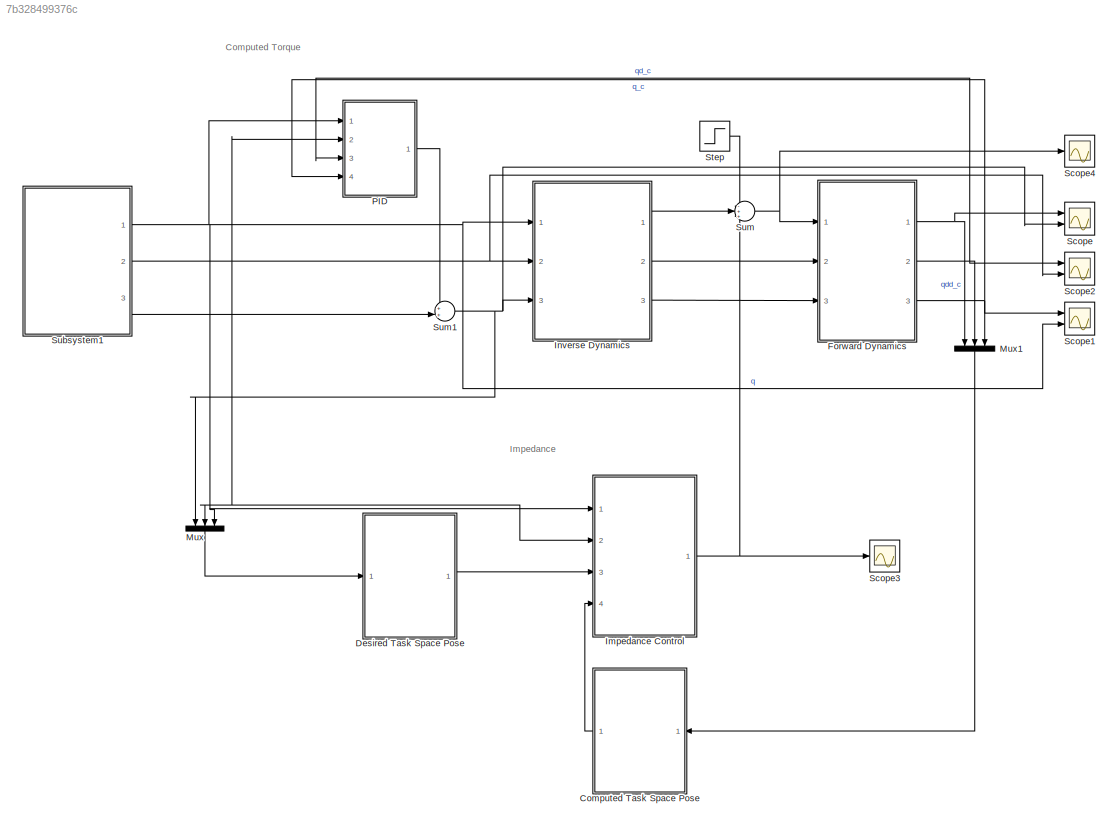
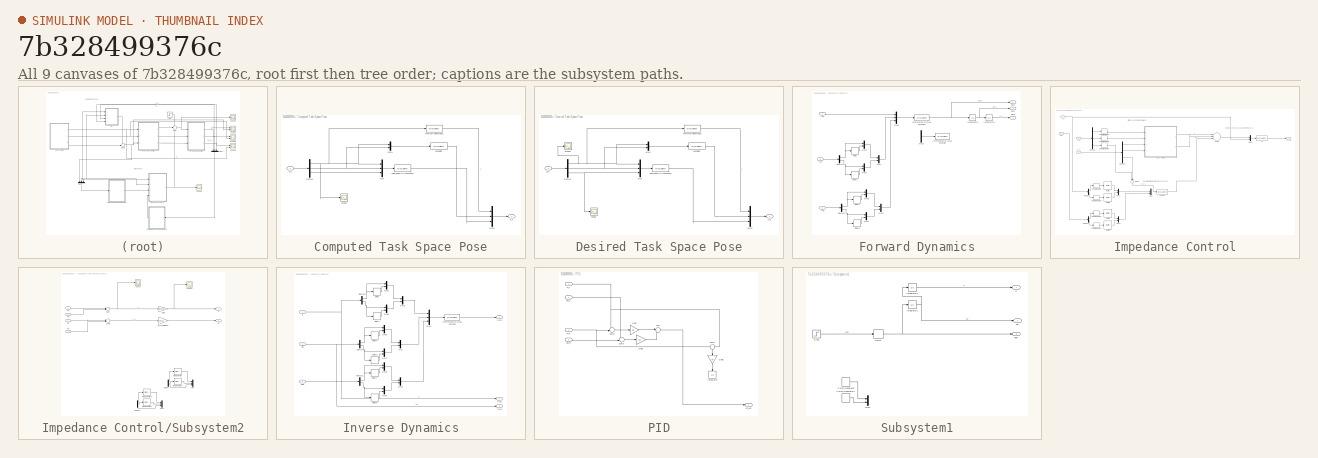
[diagram: thumbnail index - all 9 canvases of the model, root first then tree order]
MODEL slx_7b328499376c
KIND model
CONFIG AbsTol = auto
CONFIG EnableMultiTasking = off
CONFIG FixedStep = 0.01
CONFIG MaxStep = auto
CONFIG MinStep = auto
CONFIG RelTol = 1e-3
CONFIG SampleTimeConstraint = Unconstrained
CONFIG Solver = ode4
CONFIG SolverName = ode4
CONFIG StartTime = 0.0
CONFIG StopTime = 2
BLOCK [SubSystem] Computed Task Space Pose
  Ports = [1, 1]
  RequestExecContextInheritance = off
BLOCK [Demux] Computed Task Space Pose/Demux
  DisplayOption = bar
  Outputs = 3
  Ports = [1, 3]
BLOCK [MATLABFcn] Computed Task Space Pose/Forward Kinematics
  MATLABFcn = calcForward
  Output1D = off
  Ports = [1, 1]
BLOCK [MATLABFcn] Computed Task Space Pose/Jacobian
  MATLABFcn = calcXd
  Output1D = off
  Ports = [1, 1]
BLOCK [MATLABFcn] Computed Task Space Pose/Jointspace to taskspace
  MATLABFcn = computeJoint2Task
  Output1D = off
  Ports = [1, 1]
BLOCK [Mux] Computed Task Space Pose/Mux
  DisplayOption = bar
  Inputs = 3
  Ports = [3, 1]
BLOCK [Mux] Computed Task Space Pose/Mux1
  DisplayOption = bar
  Inputs = 2
  Ports = [2, 1]
BLOCK [Mux] Computed Task Space Pose/Mux2
  DisplayOption = bar
  Inputs = 3
  Ports = [3, 1]
BLOCK [Scope] Computed Task Space Pose/Scope
  Floating = off
  NumInputPorts = 1
  Ports = [1]
  ScopeSpecificationString = Simulink.scopes.TimeScopeBlockCfg('CurrentConfiguration', extmgr.ConfigurationSet(extmgr.Configuration('Core','General UI',true),extmgr.Configuration('Core','Source UI',true),extmgr.Configuration('Sources','WiredSimulink',true,'DataLoggingVariableName','ScopeData2'),extmgr.Configuration('Visuals','Time Domain',true,'SerializedDisplays',{struct('MinYLimReal','-1.00000','MaxYLimReal','1.00000','YLab...<+1407ch>
BLOCK [Inport] Computed Task Space Pose/q_c
  IconDisplay = Port number
BLOCK [Outport] Computed Task Space Pose/x_d
  IconDisplay = Port number
BLOCK [SubSystem] Desired Task Space Pose
  Ports = [1, 1]
  RequestExecContextInheritance = off
BLOCK [Demux] Desired Task Space Pose/Demux
  DisplayOption = bar
  Outputs = 3
  Ports = [1, 3]
BLOCK [MATLABFcn] Desired Task Space Pose/Forward Kinematics
  MATLABFcn = calcForward
  Output1D = off
  Ports = [1, 1]
BLOCK [MATLABFcn] Desired Task Space Pose/Jacobian
  MATLABFcn = calcXd
  Output1D = off
  Ports = [1, 1]
BLOCK [MATLABFcn] Desired Task Space Pose/Jointspace to taskspace
  MATLABFcn = computeJoint2Task
  Output1D = off
  Ports = [1, 1]
BLOCK [Mux] Desired Task Space Pose/Mux
  DisplayOption = bar
  Inputs = 3
  Ports = [3, 1]
BLOCK [Mux] Desired Task Space Pose/Mux1
  DisplayOption = bar
  Inputs = 2
  Ports = [2, 1]
BLOCK [Mux] Desired Task Space Pose/Mux2
  DisplayOption = bar
  Inputs = 3
  Ports = [3, 1]
BLOCK [Scope] Desired Task Space Pose/Scope
  Floating = off
  NumInputPorts = 1
  Ports = [1]
  ScopeSpecificationString = Simulink.scopes.TimeScopeBlockCfg('CurrentConfiguration', extmgr.ConfigurationSet(extmgr.Configuration('Core','General UI',true),extmgr.Configuration('Core','Source UI',true),extmgr.Configuration('Sources','WiredSimulink',true,'DataLoggingVariableName','ScopeData4'),extmgr.Configuration('Visuals','Time Domain',true,'SerializedDisplays',{struct('MinYLimReal','-0.000002','MaxYLimReal','0.000017','YL...<+1388ch>
BLOCK [Scope] Desired Task Space Pose/Scope1
  Floating = off
  NumInputPorts = 1
  Ports = [1]
  ScopeSpecificationString = Simulink.scopes.TimeScopeBlockCfg('CurrentConfiguration', extmgr.ConfigurationSet(extmgr.Configuration('Core','General UI',true),extmgr.Configuration('Core','Source UI',true),extmgr.Configuration('Sources','WiredSimulink',true,'DataLoggingVariableName','ScopeData5'),extmgr.Configuration('Visuals','Time Domain',true,'SerializedDisplays',{struct('MinYLimReal','-0.04375','MaxYLimReal','0.39375','YLab...<+1409ch>
BLOCK [Inport] Desired Task Space Pose/q_d
  IconDisplay = Port number
BLOCK [Outport] Desired Task Space Pose/x_d
  IconDisplay = Port number
BLOCK [SubSystem] Forward Dynamics
  Ports = [3, 3]
  RequestExecContextInheritance = off
  ShowPortLabels = SignalName
BLOCK [Delay] Forward Dynamics/Delay
  DelayLength = 1
  InputPortMap = u0
  Ports = [1, 1]
BLOCK [Delay] Forward Dynamics/Delay1
  DelayLength = 1
  InputPortMap = u0
  Ports = [1, 1]
BLOCK [Delay] Forward Dynamics/Delay2
  DelayLength = 1
  InputPortMap = u0
  Ports = [1, 1]
BLOCK [Delay] Forward Dynamics/Delay3
  DelayLength = 1
  InputPortMap = u0
  Ports = [1, 1]
BLOCK [Demux] Forward Dynamics/Demux
  DisplayOption = bar
  Outputs = 2
  Ports = [1, 2]
BLOCK [Demux] Forward Dynamics/Demux1
  DisplayOption = bar
  Outputs = 2
  Ports = [1, 2]
BLOCK [Inport] Forward Dynamics/In1
  IconDisplay = Port number
BLOCK [Inport] Forward Dynamics/In2
  IconDisplay = Port number
  Port = 2
BLOCK [Inport] Forward Dynamics/In3
  IconDisplay = Port number
  Port = 3
BLOCK [Integrator] Forward Dynamics/Integrator2
  Ports = [1, 1]
BLOCK [Integrator] Forward Dynamics/Integrator3
  Ports = [1, 1]
BLOCK [MATLABFcn] Forward Dynamics/Interpreted MATLAB Function
  Commented = on
  MATLABFcn = fdynLagrange
  Output1D = off
  Ports = [1, 1]
BLOCK [MATLABFcn] Forward Dynamics/Interpreted MATLAB Function1
  MATLABFcn = forwardDyn
  Output1D = off
  Ports = [1, 1]
BLOCK [Mux] Forward Dynamics/Mux
  DisplayOption = bar
  Inputs = 2
  Ports = [2, 1]
BLOCK [Mux] Forward Dynamics/Mux1
  DisplayOption = bar
  Inputs = 2
  Ports = [2, 1]
BLOCK [Mux] Forward Dynamics/Mux2
  Commented = on
  DisplayOption = bar
  Inputs = 3
  Ports = [3, 1]
BLOCK [Mux] Forward Dynamics/Mux3
  DisplayOption = bar
  Inputs = 2
  Ports = [2, 1]
BLOCK [Mux] Forward Dynamics/Mux4
  DisplayOption = bar
  Inputs = 2
  Ports = [2, 1]
BLOCK [Mux] Forward Dynamics/Mux5
  DisplayOption = bar
  Inputs = 3
  Ports = [3, 1]
BLOCK [Mux] Forward Dynamics/Mux6
  DisplayOption = bar
  Inputs = 2
  Ports = [2, 1]
BLOCK [Mux] Forward Dynamics/Mux7
  DisplayOption = bar
  Inputs = 2
  Ports = [2, 1]
BLOCK [Outport] Forward Dynamics/Out1
  IconDisplay = Port number
  Port = 2
BLOCK [Outport] Forward Dynamics/Out2
  IconDisplay = Port number
  Port = 3
BLOCK [Outport] Forward Dynamics/Out3
  IconDisplay = Port number
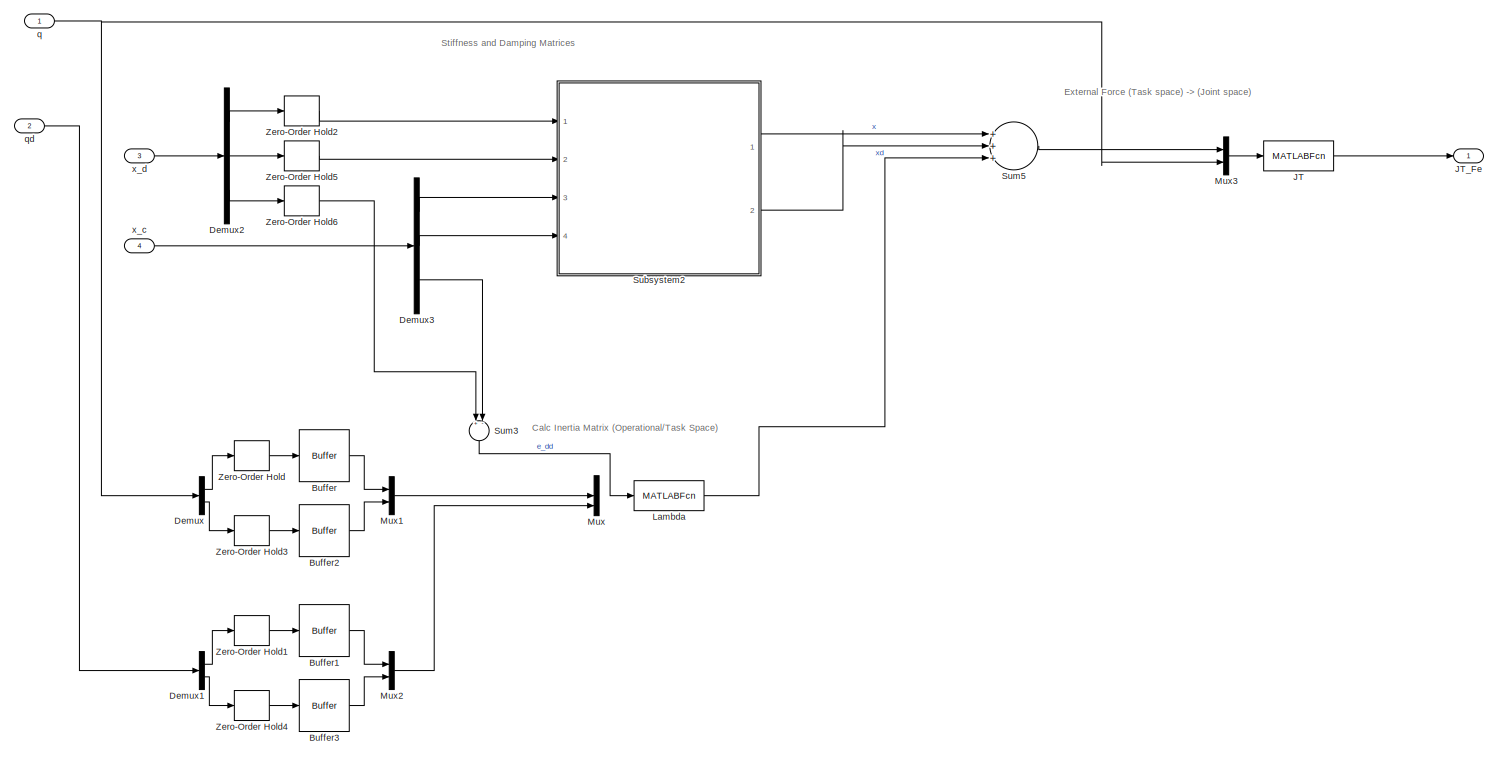
[diagram: Impedance Control - part 1/1, most of the canvas]
BLOCK [SubSystem] Impedance Control
  Ports = [4, 1]
  RequestExecContextInheritance = off
BLOCK [Buffer] Impedance Control/Buffer
  Commented = on
  N = 2
  OutputFrames = off
BLOCK [Buffer] Impedance Control/Buffer1
  Commented = on
  N = 2
  OutputFrames = off
BLOCK [Buffer] Impedance Control/Buffer2
  Commented = on
  N = 2
  OutputFrames = off
BLOCK [Buffer] Impedance Control/Buffer3
  Commented = on
  N = 2
  OutputFrames = off
BLOCK [Demux] Impedance Control/Demux
  Commented = on
  DisplayOption = bar
  Outputs = 2
  Ports = [1, 2]
BLOCK [Demux] Impedance Control/Demux1
  Commented = on
  DisplayOption = bar
  Outputs = 2
  Ports = [1, 2]
BLOCK [Demux] Impedance Control/Demux2
  DisplayOption = bar
  Outputs = 3
  Ports = [1, 3]
BLOCK [Demux] Impedance Control/Demux3
  DisplayOption = bar
  Outputs = 3
  Ports = [1, 3]
BLOCK [MATLABFcn] Impedance Control/JT
  MATLABFcn = calcforceTorque
  Output1D = off
  Ports = [1, 1]
BLOCK [Outport] Impedance Control/JT_Fe
  IconDisplay = Port number
BLOCK [MATLABFcn] Impedance Control/Lambda
  MATLABFcn = calc_M_alone
  Output1D = off
  Ports = [1, 1]
BLOCK [Mux] Impedance Control/Mux
  Commented = on
  DisplayOption = bar
  Inputs = 3
  Ports = [3, 1]
BLOCK [Mux] Impedance Control/Mux1
  Commented = on
  DisplayOption = bar
  Inputs = 2
  Ports = [2, 1]
BLOCK [Mux] Impedance Control/Mux2
  Commented = on
  DisplayOption = bar
  Inputs = 2
  Ports = [2, 1]
BLOCK [Mux] Impedance Control/Mux3
  DisplayOption = bar
  Inputs = 2
  Ports = [2, 1]
BLOCK [SubSystem] Impedance Control/Subsystem2
  Ports = [4, 2]
  RequestExecContextInheritance = off
BLOCK [Gain] Impedance Control/Subsystem2/B_d (damping)
  Gain = eye(3).*(2*10)
  Multiplication = Matrix(K*u) (u vector)
  OutDataTypeStr = Inherit: Inherit via internal rule
  ParamDataTypeStr = Inherit: Inherit via internal rule
  SaturateOnIntegerOverflow = off
BLOCK [Demux] Impedance Control/Subsystem2/Demux
  Commented = on
  DisplayOption = bar
  Outputs = 3
  Ports = [1, 3]
BLOCK [Demux] Impedance Control/Subsystem2/Demux1
  Commented = on
  DisplayOption = bar
  Outputs = 3
  Ports = [1, 3]
BLOCK [Gain] Impedance Control/Subsystem2/Gain
  Gain = (eye(3).*(15^2))
  Multiplication = Matrix(K*u) (u vector)
  OutDataTypeStr = Inherit: Inherit via internal rule
  ParamDataTypeStr = Inherit: Inherit via internal rule
  SaturateOnIntegerOverflow = off
BLOCK [Inport] Impedance Control/Subsystem2/In1
  IconDisplay = Port number
BLOCK [Inport] Impedance Control/Subsystem2/In2
  IconDisplay = Port number
  Port = 2
BLOCK [Inport] Impedance Control/Subsystem2/In3
  IconDisplay = Port number
  Port = 3
BLOCK [Inport] Impedance Control/Subsystem2/In4
  IconDisplay = Port number
  Port = 4
BLOCK [Mux] Impedance Control/Subsystem2/Mux
  Commented = on
  DisplayOption = bar
  Inputs = 3
  Ports = [3, 1]
BLOCK [Mux] Impedance Control/Subsystem2/Mux1
  Commented = on
  DisplayOption = bar
  Inputs = 3
  Ports = [3, 1]
BLOCK [Reference] Impedance Control/Subsystem2/PID Controller  REF=simulink/Continuous/PID Controller
  Commented = on
  Ports = [1, 1]
  SourceBlock = simulink/Continuous/PID Controller
  SourceProductBaseCode = SL
  SourceProductName = Simulink
  SourceType = PID 1dof
BLOCK [Reference] Impedance Control/Subsystem2/PID Controller1  REF=simulink/Continuous/PID Controller
  Commented = on
  Ports = [1, 1]
  SourceBlock = simulink/Continuous/PID Controller
  SourceProductBaseCode = SL
  SourceProductName = Simulink
  SourceType = PID 1dof
BLOCK [Reference] Impedance Control/Subsystem2/PID Controller3  REF=simulink/Continuous/PID Controller
  Commented = on
  Ports = [1, 1]
  SourceBlock = simulink/Continuous/PID Controller
  SourceProductBaseCode = SL
  SourceProductName = Simulink
  SourceType = PID 1dof
BLOCK [Reference] Impedance Control/Subsystem2/PID Controller4  REF=simulink/Continuous/PID Controller
  Commented = on
  Ports = [1, 1]
  SourceBlock = simulink/Continuous/PID Controller
  SourceProductBaseCode = SL
  SourceProductName = Simulink
  SourceType = PID 1dof
BLOCK [Scope] Impedance Control/Subsystem2/Scope
  Floating = off
  NumInputPorts = 1
  Ports = [1]
  ScopeSpecificationString = Simulink.scopes.TimeScopeBlockCfg('CurrentConfiguration', extmgr.ConfigurationSet(extmgr.Configuration('Core','General UI',true),extmgr.Configuration('Core','Source UI',true),extmgr.Configuration('Sources','WiredSimulink',true,'DataLoggingVariableName','ScopeData6'),extmgr.Configuration('Visuals','Time Domain',true,'SerializedDisplays',{struct('MinYLimReal','-1.00000','MaxYLimReal','1.00000','YLab...<+1401ch>
BLOCK [Scope] Impedance Control/Subsystem2/Scope1
  Floating = off
  NumInputPorts = 1
  Ports = [1]
  ScopeSpecificationString = Simulink.scopes.TimeScopeBlockCfg('CurrentConfiguration', extmgr.ConfigurationSet(extmgr.Configuration('Core','General UI',true),extmgr.Configuration('Core','Source UI',true),extmgr.Configuration('Sources','WiredSimulink',true,'DataLoggingVariableName','ScopeData7'),extmgr.Configuration('Visuals','Time Domain',true,'SerializedDisplays',{struct('MinYLimReal','-1.00000','MaxYLimReal','1.00000','YLab...<+1410ch>
BLOCK [Sum] Impedance Control/Subsystem2/Sum
  InputSameDT = off
  Inputs = +-
  OutDataTypeStr = Inherit: Inherit via internal rule
  Ports = [2, 1]
  SaturateOnIntegerOverflow = off
BLOCK [Sum] Impedance Control/Subsystem2/Sum2
  InputSameDT = off
  Inputs = +-
  OutDataTypeStr = Inherit: Inherit via internal rule
  Ports = [2, 1]
  SaturateOnIntegerOverflow = off
BLOCK [Outport] Impedance Control/Subsystem2/x
  IconDisplay = Port number
BLOCK [Outport] Impedance Control/Subsystem2/xd
  IconDisplay = Port number
  Port = 2
BLOCK [Sum] Impedance Control/Sum3
  InputSameDT = off
  Inputs = +-
  OutDataTypeStr = Inherit: Inherit via internal rule
  Ports = [2, 1]
  SaturateOnIntegerOverflow = off
BLOCK [Sum] Impedance Control/Sum5
  InputSameDT = off
  Inputs = +++
  OutDataTypeStr = Inherit: Inherit via internal rule
  Ports = [3, 1]
  SaturateOnIntegerOverflow = off
BLOCK [ZeroOrderHold] Impedance Control/Zero-Order Hold
  Commented = on
  SampleTime = 0.01
BLOCK [ZeroOrderHold] Impedance Control/Zero-Order Hold1
  Commented = on
  SampleTime = 0.01
BLOCK [ZeroOrderHold] Impedance Control/Zero-Order Hold2
  Commented = through
  SampleTime = 0.01
BLOCK [ZeroOrderHold] Impedance Control/Zero-Order Hold3
  Commented = on
  SampleTime = 0.01
BLOCK [ZeroOrderHold] Impedance Control/Zero-Order Hold4
  Commented = on
  SampleTime = 0.01
BLOCK [ZeroOrderHold] Impedance Control/Zero-Order Hold5
  Commented = through
  SampleTime = 0.01
BLOCK [ZeroOrderHold] Impedance Control/Zero-Order Hold6
  Commented = through
  SampleTime = 0.01
BLOCK [Inport] Impedance Control/q
  IconDisplay = Port number
BLOCK [Inport] Impedance Control/qd
  IconDisplay = Port number
  Port = 2
BLOCK [Inport] Impedance Control/x_c
  IconDisplay = Port number
  Port = 4
BLOCK [Inport] Impedance Control/x_d
  IconDisplay = Port number
  Port = 3
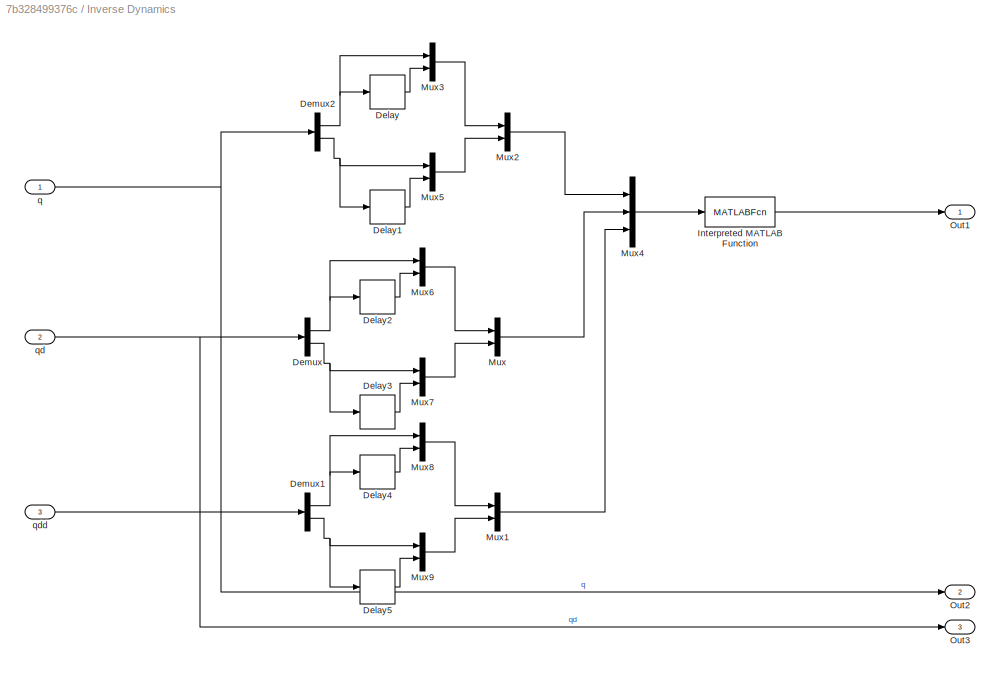
BLOCK [SubSystem] Inverse Dynamics
  Ports = [3, 3]
  RequestExecContextInheritance = off
BLOCK [Delay] Inverse Dynamics/Delay
  DelayLength = 1
  InputPortMap = u0
  Ports = [1, 1]
BLOCK [Delay] Inverse Dynamics/Delay1
  DelayLength = 1
  InputPortMap = u0
  Ports = [1, 1]
BLOCK [Delay] Inverse Dynamics/Delay2
  DelayLength = 1
  InputPortMap = u0
  Ports = [1, 1]
BLOCK [Delay] Inverse Dynamics/Delay3
  DelayLength = 1
  InputPortMap = u0
  Ports = [1, 1]
BLOCK [Delay] Inverse Dynamics/Delay4
  DelayLength = 1
  InputPortMap = u0
  Ports = [1, 1]
BLOCK [Delay] Inverse Dynamics/Delay5
  DelayLength = 1
  InputPortMap = u0
  Ports = [1, 1]
BLOCK [Demux] Inverse Dynamics/Demux
  DisplayOption = bar
  Outputs = 2
  Ports = [1, 2]
BLOCK [Demux] Inverse Dynamics/Demux1
  DisplayOption = bar
  Outputs = 2
  Ports = [1, 2]
BLOCK [Demux] Inverse Dynamics/Demux2
  DisplayOption = bar
  Outputs = 2
  Ports = [1, 2]
BLOCK [MATLABFcn] Inverse Dynamics/Interpreted MATLAB Function
  MATLABFcn = RNE_sim
  Output1D = off
  Ports = [1, 1]
BLOCK [Mux] Inverse Dynamics/Mux
  DisplayOption = bar
  Inputs = 2
  Ports = [2, 1]
BLOCK [Mux] Inverse Dynamics/Mux1
  DisplayOption = bar
  Inputs = 2
  Ports = [2, 1]
BLOCK [Mux] Inverse Dynamics/Mux2
  DisplayOption = bar
  Inputs = 2
  Ports = [2, 1]
BLOCK [Mux] Inverse Dynamics/Mux3
  DisplayOption = bar
  Inputs = 2
  Ports = [2, 1]
BLOCK [Mux] Inverse Dynamics/Mux4
  DisplayOption = bar
  Inputs = 3
  Ports = [3, 1]
BLOCK [Mux] Inverse Dynamics/Mux5
  DisplayOption = bar
  Inputs = 2
  Ports = [2, 1]
BLOCK [Mux] Inverse Dynamics/Mux6
  DisplayOption = bar
  Inputs = 2
  Ports = [2, 1]
BLOCK [Mux] Inverse Dynamics/Mux7
  DisplayOption = bar
  Inputs = 2
  Ports = [2, 1]
BLOCK [Mux] Inverse Dynamics/Mux8
  DisplayOption = bar
  Inputs = 2
  Ports = [2, 1]
BLOCK [Mux] Inverse Dynamics/Mux9
  DisplayOption = bar
  Inputs = 2
  Ports = [2, 1]
BLOCK [Outport] Inverse Dynamics/Out1
  IconDisplay = Port number
BLOCK [Outport] Inverse Dynamics/Out2
  IconDisplay = Port number
  Port = 2
BLOCK [Outport] Inverse Dynamics/Out3
  IconDisplay = Port number
  Port = 3
BLOCK [Inport] Inverse Dynamics/q
  IconDisplay = Port number
BLOCK [Inport] Inverse Dynamics/qd
  IconDisplay = Port number
  Port = 2
BLOCK [Inport] Inverse Dynamics/qdd
  IconDisplay = Port number
  Port = 3
BLOCK [Mux] Mux
  DisplayOption = bar
  Inputs = 3
  Ports = [3, 1]
BLOCK [Mux] Mux1
  DisplayOption = bar
  Inputs = 3
  Ports = [3, 1]
BLOCK [SubSystem] PID
  Commented = on
  Ports = [4, 1]
  RequestExecContextInheritance = off
BLOCK [Gain] PID/Gain
  Gain = KP
  Multiplication = Matrix(K*u) (u vector)
  OutDataTypeStr = Inherit: Inherit via internal rule
  ParamDataTypeStr = Inherit: Inherit via internal rule
  SaturateOnIntegerOverflow = off
BLOCK [Gain] PID/Gain1
  Gain = KV
  Multiplication = Matrix(K*u) (u vector)
  OutDataTypeStr = Inherit: Inherit via internal rule
  ParamDataTypeStr = Inherit: Inherit via internal rule
  SaturateOnIntegerOverflow = off
BLOCK [Gain] PID/Gain2
  Commented = on
  Gain = KI
  Multiplication = Matrix(K*u) (u vector)
  OutDataTypeStr = Inherit: Inherit via internal rule
  ParamDataTypeStr = Inherit: Inherit via internal rule
  SaturateOnIntegerOverflow = off
BLOCK [Integrator] PID/Integrator
  Commented = on
  Ports = [1, 1]
BLOCK [Outport] PID/KP_KD
  IconDisplay = Port number
BLOCK [Sum] PID/Sum
  IconShape = round
  InputSameDT = off
  Inputs = |++
  OutDataTypeStr = Inherit: Inherit via internal rule
  Ports = [2, 1]
  SaturateOnIntegerOverflow = off
BLOCK [Sum] PID/Sum2
  IconShape = round
  InputSameDT = off
  Inputs = -+|
  OutDataTypeStr = Inherit: Inherit via internal rule
  Ports = [2, 1]
  SaturateOnIntegerOverflow = off
BLOCK [Sum] PID/Sum3
  IconShape = round
  InputSameDT = off
  Inputs = -+|
  OutDataTypeStr = Inherit: Inherit via internal rule
  Ports = [2, 1]
  SaturateOnIntegerOverflow = off
BLOCK [Sum] PID/Sum5
  Commented = on
  IconShape = round
  InputSameDT = off
  Inputs = +-
  OutDataTypeStr = Inherit: Inherit via internal rule
  Ports = [2, 1]
  SaturateOnIntegerOverflow = off
BLOCK [Inport] PID/q_c
  IconDisplay = Port number
  Port = 4
BLOCK [Inport] PID/q_d
  IconDisplay = Port number
BLOCK [Inport] PID/qd_c
  IconDisplay = Port number
  Port = 3
BLOCK [Inport] PID/qd_d
  IconDisplay = Port number
  Port = 2
BLOCK [Scope] Scope
  Floating = off
  NumInputPorts = 2
  Ports = [2]
  ScopeSpecificationString = Simulink.scopes.TimeScopeBlockCfg('CurrentConfiguration', extmgr.ConfigurationSet(extmgr.Configuration('Core','General UI',true),extmgr.Configuration('Core','Source UI',true),extmgr.Configuration('Sources','WiredSimulink',true,'DataLoggingVariableName','ScopeData1'),extmgr.Configuration('Visuals','Time Domain',true,'SerializedDisplays',{struct('MinYLimReal','-45447544484106702565255430353636554901...<+3305ch>
BLOCK [Scope] Scope1
  Floating = off
  NumInputPorts = 2
  Ports = [2]
  ScopeSpecificationString = Simulink.scopes.TimeScopeBlockCfg('CurrentConfiguration', extmgr.ConfigurationSet(extmgr.Configuration('Core','General UI',true),extmgr.Configuration('Core','Source UI',true),extmgr.Configuration('Sources','WiredSimulink',true,'DataLoggingVariableName','ScopeData2'),extmgr.Configuration('Visuals','Time Domain',true,'SerializedDisplays',{struct('MinYLimReal','-0.26797','MaxYLimReal','2.41172','YLab...<+1432ch>
BLOCK [Scope] Scope2
  Floating = off
  NumInputPorts = 2
  Ports = [2]
  ScopeSpecificationString = Simulink.scopes.TimeScopeBlockCfg('CurrentConfiguration', extmgr.ConfigurationSet(extmgr.Configuration('Core','General UI',true),extmgr.Configuration('Core','Source UI',true),extmgr.Configuration('Sources','WiredSimulink',true,'DataLoggingVariableName','ScopeData3'),extmgr.Configuration('Visuals','Time Domain',true,'SerializedDisplays',{struct('MinYLimReal','-45771183384406660621562023387799522351...<+2023ch>
BLOCK [Scope] Scope3
  Floating = off
  NumInputPorts = 1
  Ports = [1]
  ScopeSpecificationString = Simulink.scopes.TimeScopeBlockCfg('CurrentConfiguration', extmgr.ConfigurationSet(extmgr.Configuration('Core','General UI',true),extmgr.Configuration('Core','Source UI',true),extmgr.Configuration('Sources','WiredSimulink',true,'DataLoggingVariableName','ScopeData1'),extmgr.Configuration('Visuals','Time Domain',true,'SerializedDisplays',{struct('MinYLimReal','-0.72935','MaxYLimReal','6.56418','YLab...<+1446ch>
BLOCK [Scope] Scope4
  Floating = off
  NumInputPorts = 1
  Ports = [1]
  ScopeSpecificationString = Simulink.scopes.TimeScopeBlockCfg('CurrentConfiguration', extmgr.ConfigurationSet(extmgr.Configuration('Core','General UI',true),extmgr.Configuration('Core','Source UI',true),extmgr.Configuration('Sources','WiredSimulink',true,'DataLoggingVariableName','ScopeData3'),extmgr.Configuration('Visuals','Time Domain',true,'SerializedDisplays',{struct('MinYLimReal','-1.00000','MaxYLimReal','1.00000','YLab...<+1399ch>
BLOCK [Step] Step
  After = [0.2;0.2]
  Before = [0;0]
  SampleTime = 0
  Time = 0.75
BLOCK [SubSystem] Subsystem1
  Ports = [0, 3]
  RequestExecContextInheritance = off
BLOCK [Delay] Subsystem1/Delay
  InputPortMap = u0
  Ports = [1, 1]
BLOCK [Integrator] Subsystem1/Integrator2
  Ports = [1, 1]
BLOCK [Integrator] Subsystem1/Integrator3
  Ports = [1, 1]
BLOCK [Mux] Subsystem1/Mux1
  Commented = on
  DisplayOption = bar
  Inputs = 2
  Ports = [2, 1]
BLOCK [DiscretePulseGenerator] Subsystem1/Pulse Generator
  Commented = on
  Ports = [0, 1]
  PulseType = Time based
  PulseWidth = 5
BLOCK [DiscretePulseGenerator] Subsystem1/Pulse Generator1
  Commented = on
  Ports = [0, 1]
  PulseType = Time based
  PulseWidth = 5
BLOCK [Step] Subsystem1/Step
  After = [0.35;0.35]
  Before = [0;0]
  SampleTime = 0
  Time = 0.5
  VectorParams1D = off
BLOCK [Outport] Subsystem1/q
  IconDisplay = Port number
BLOCK [Outport] Subsystem1/qd
  IconDisplay = Port number
  Port = 2
BLOCK [Outport] Subsystem1/qdd
  IconDisplay = Port number
  Port = 3
BLOCK [Sum] Sum
  IconShape = round
  InputSameDT = off
  Inputs = -++
  OutDataTypeStr = Inherit: Inherit via internal rule
  Ports = [3, 1]
  SaturateOnIntegerOverflow = off
BLOCK [Sum] Sum1
  IconShape = round
  InputSameDT = off
  Inputs = ++|
  OutDataTypeStr = Inherit: Inherit via internal rule
  Ports = [2, 1]
  SaturateOnIntegerOverflow = off
ANNOTATION (root): Computed Torque
ANNOTATION (root): Impedance
ANNOTATION Impedance Control: Calc Inertia Matrix (Operational/Task Space)
ANNOTATION Impedance Control: External Force (Task space) -> (Joint space)
ANNOTATION Impedance Control: Stiffness and Damping Matrices
NET Computed Task Space Pose/Demux:1 -> Computed Task Space Pose/Forward Kinematics:1, Computed Task Space Pose/Mux1:1, Computed Task Space Pose/Mux:1, Computed Task Space Pose/Scope:1
NET Computed Task Space Pose/Demux:2 -> Computed Task Space Pose/Mux1:2, Computed Task Space Pose/Mux:2
LINE Computed Task Space Pose/Demux:3 -> Computed Task Space Pose/Mux:3
LINE Computed Task Space Pose/Forward Kinematics:1 -> Computed Task Space Pose/Mux2:1
LINE Computed Task Space Pose/Jacobian:1 -> Computed Task Space Pose/Mux2:2
LINE Computed Task Space Pose/Jointspace to taskspace:1 -> Computed Task Space Pose/Mux2:3
LINE Computed Task Space Pose/Mux1:1 -> Computed Task Space Pose/Jacobian:1
LINE Computed Task Space Pose/Mux2:1 -> Computed Task Space Pose/x_d:1
LINE Computed Task Space Pose/Mux:1 -> Computed Task Space Pose/Jointspace to taskspace:1
LINE Computed Task Space Pose/q_c:1 -> Computed Task Space Pose/Demux:1
LINE Computed Task Space Pose:1 -> Impedance Control:4
NET Desired Task Space Pose/Demux:1 -> Desired Task Space Pose/Forward Kinematics:1, Desired Task Space Pose/Mux1:1, Desired Task Space Pose/Mux:1, Desired Task Space Pose/Scope1:1
NET Desired Task Space Pose/Demux:2 -> Desired Task Space Pose/Mux1:2, Desired Task Space Pose/Mux:2
NET Desired Task Space Pose/Demux:3 -> Desired Task Space Pose/Mux:3, Desired Task Space Pose/Scope:1
LINE Desired Task Space Pose/Forward Kinematics:1 -> Desired Task Space Pose/Mux2:1
LINE Desired Task Space Pose/Jacobian:1 -> Desired Task Space Pose/Mux2:2
LINE Desired Task Space Pose/Jointspace to taskspace:1 -> Desired Task Space Pose/Mux2:3
LINE Desired Task Space Pose/Mux1:1 -> Desired Task Space Pose/Jacobian:1
LINE Desired Task Space Pose/Mux2:1 -> Desired Task Space Pose/x_d:1
LINE Desired Task Space Pose/Mux:1 -> Desired Task Space Pose/Jointspace to taskspace:1
LINE Desired Task Space Pose/q_d:1 -> Desired Task Space Pose/Demux:1
LINE Desired Task Space Pose:1 -> Impedance Control:3
LINE Forward Dynamics/Delay1:1 -> Forward Dynamics/Mux4:2
LINE Forward Dynamics/Delay2:1 -> Forward Dynamics/Mux6:2
LINE Forward Dynamics/Delay3:1 -> Forward Dynamics/Mux7:2
LINE Forward Dynamics/Delay:1 -> Forward Dynamics/Mux3:2
NET Forward Dynamics/Demux1:1 -> Forward Dynamics/Delay2:1, Forward Dynamics/Mux6:1
NET Forward Dynamics/Demux1:2 -> Forward Dynamics/Delay3:1, Forward Dynamics/Mux7:1
NET Forward Dynamics/Demux:1 -> Forward Dynamics/Delay:1, Forward Dynamics/Mux3:1
NET Forward Dynamics/Demux:2 -> Forward Dynamics/Delay1:1, Forward Dynamics/Mux4:1
LINE Forward Dynamics/In1:1 -> Forward Dynamics/Mux5:1
LINE Forward Dynamics/In2:1 -> Forward Dynamics/Demux:1
LINE Forward Dynamics/In3:1 -> Forward Dynamics/Demux1:1
NET Forward Dynamics/Integrator2:1 -> Forward Dynamics/Integrator3:1, Forward Dynamics/Out1:1
LINE Forward Dynamics/Integrator3:1 -> Forward Dynamics/Out2:1
NET Forward Dynamics/Interpreted MATLAB Function1:1 -> Forward Dynamics/Integrator2:1, Forward Dynamics/Out3:1
LINE Forward Dynamics/Mux1:1 -> Forward Dynamics/Mux5:3
LINE Forward Dynamics/Mux2:1 -> Forward Dynamics/Interpreted MATLAB Function:1
LINE Forward Dynamics/Mux3:1 -> Forward Dynamics/Mux:1
LINE Forward Dynamics/Mux4:1 -> Forward Dynamics/Mux:2
LINE Forward Dynamics/Mux5:1 -> Forward Dynamics/Interpreted MATLAB Function1:1
LINE Forward Dynamics/Mux6:1 -> Forward Dynamics/Mux1:1
LINE Forward Dynamics/Mux7:1 -> Forward Dynamics/Mux1:2
LINE Forward Dynamics/Mux:1 -> Forward Dynamics/Mux5:2
NET Forward Dynamics:1 -> Mux1:1, Scope:1
NET Forward Dynamics:2 -> Mux1:2, PID:3, Scope2:1
NET Forward Dynamics:3 -> Mux1:3, PID:4, Scope1:1
LINE Impedance Control/Buffer1:1 -> Impedance Control/Mux2:1
LINE Impedance Control/Buffer2:1 -> Impedance Control/Mux1:2
LINE Impedance Control/Buffer3:1 -> Impedance Control/Mux2:2
LINE Impedance Control/Buffer:1 -> Impedance Control/Mux1:1
LINE Impedance Control/Demux1:1 -> Impedance Control/Zero-Order Hold1:1
LINE Impedance Control/Demux1:2 -> Impedance Control/Zero-Order Hold4:1
LINE Impedance Control/Demux2:1 -> Impedance Control/Zero-Order Hold2:1
LINE Impedance Control/Demux2:2 -> Impedance Control/Zero-Order Hold5:1
LINE Impedance Control/Demux2:3 -> Impedance Control/Zero-Order Hold6:1
LINE Impedance Control/Demux3:1 -> Impedance Control/Subsystem2:3
LINE Impedance Control/Demux3:2 -> Impedance Control/Subsystem2:4
LINE Impedance Control/Demux3:3 -> Impedance Control/Sum3:2
LINE Impedance Control/Demux:1 -> Impedance Control/Zero-Order Hold:1
LINE Impedance Control/Demux:2 -> Impedance Control/Zero-Order Hold3:1
LINE Impedance Control/JT:1 -> Impedance Control/JT_Fe:1
LINE Impedance Control/Lambda:1 -> Impedance Control/Sum5:3
LINE Impedance Control/Mux1:1 -> Impedance Control/Mux:2
LINE Impedance Control/Mux2:1 -> Impedance Control/Mux:3
LINE Impedance Control/Mux3:1 -> Impedance Control/JT:1
LINE Impedance Control/Subsystem2/B_d (damping):1 -> Impedance Control/Subsystem2/xd:1
LINE Impedance Control/Subsystem2/Demux1:1 -> Impedance Control/Subsystem2/PID Controller3:1
LINE Impedance Control/Subsystem2/Demux1:2 -> Impedance Control/Subsystem2/PID Controller4:1
LINE Impedance Control/Subsystem2/Demux1:3 -> Impedance Control/Subsystem2/Mux1:3
LINE Impedance Control/Subsystem2/Demux:1 -> Impedance Control/Subsystem2/PID Controller:1
LINE Impedance Control/Subsystem2/Demux:2 -> Impedance Control/Subsystem2/PID Controller1:1
LINE Impedance Control/Subsystem2/Demux:3 -> Impedance Control/Subsystem2/Mux:3
NET Impedance Control/Subsystem2/Gain:1 -> Impedance Control/Subsystem2/Scope1:1, Impedance Control/Subsystem2/x:1
LINE Impedance Control/Subsystem2/In1:1 -> Impedance Control/Subsystem2/Sum:1
LINE Impedance Control/Subsystem2/In2:1 -> Impedance Control/Subsystem2/Sum2:1
LINE Impedance Control/Subsystem2/In3:1 -> Impedance Control/Subsystem2/Sum:2
LINE Impedance Control/Subsystem2/In4:1 -> Impedance Control/Subsystem2/Sum2:2
LINE Impedance Control/Subsystem2/PID Controller1:1 -> Impedance Control/Subsystem2/Mux:2
LINE Impedance Control/Subsystem2/PID Controller3:1 -> Impedance Control/Subsystem2/Mux1:1
LINE Impedance Control/Subsystem2/PID Controller4:1 -> Impedance Control/Subsystem2/Mux1:2
LINE Impedance Control/Subsystem2/PID Controller:1 -> Impedance Control/Subsystem2/Mux:1
LINE Impedance Control/Subsystem2/Sum2:1 -> Impedance Control/Subsystem2/B_d (damping):1
NET Impedance Control/Subsystem2/Sum:1 -> Impedance Control/Subsystem2/Gain:1, Impedance Control/Subsystem2/Scope:1
LINE Impedance Control/Subsystem2:1 -> Impedance Control/Sum5:1
LINE Impedance Control/Subsystem2:2 -> Impedance Control/Sum5:2
LINE Impedance Control/Sum3:1 -> Impedance Control/Lambda:1
LINE Impedance Control/Sum5:1 -> Impedance Control/Mux3:1
LINE Impedance Control/Zero-Order Hold1:1 -> Impedance Control/Buffer1:1
LINE Impedance Control/Zero-Order Hold2:1 -> Impedance Control/Subsystem2:1
LINE Impedance Control/Zero-Order Hold3:1 -> Impedance Control/Buffer2:1
LINE Impedance Control/Zero-Order Hold4:1 -> Impedance Control/Buffer3:1
LINE Impedance Control/Zero-Order Hold5:1 -> Impedance Control/Subsystem2:2
LINE Impedance Control/Zero-Order Hold6:1 -> Impedance Control/Sum3:1
LINE Impedance Control/Zero-Order Hold:1 -> Impedance Control/Buffer:1
NET Impedance Control/q:1 -> Impedance Control/Demux:1, Impedance Control/Mux3:2
LINE Impedance Control/qd:1 -> Impedance Control/Demux1:1
LINE Impedance Control/x_c:1 -> Impedance Control/Demux3:1
LINE Impedance Control/x_d:1 -> Impedance Control/Demux2:1
NET Impedance Control:1 -> Scope3:1, Sum:3
LINE Inverse Dynamics/Delay1:1 -> Inverse Dynamics/Mux5:2
LINE Inverse Dynamics/Delay2:1 -> Inverse Dynamics/Mux6:2
LINE Inverse Dynamics/Delay3:1 -> Inverse Dynamics/Mux7:2
LINE Inverse Dynamics/Delay4:1 -> Inverse Dynamics/Mux8:2
LINE Inverse Dynamics/Delay5:1 -> Inverse Dynamics/Mux9:2
LINE Inverse Dynamics/Delay:1 -> Inverse Dynamics/Mux3:2
NET Inverse Dynamics/Demux1:1 -> Inverse Dynamics/Delay4:1, Inverse Dynamics/Mux8:1
NET Inverse Dynamics/Demux1:2 -> Inverse Dynamics/Delay5:1, Inverse Dynamics/Mux9:1
NET Inverse Dynamics/Demux2:1 -> Inverse Dynamics/Delay:1, Inverse Dynamics/Mux3:1
NET Inverse Dynamics/Demux2:2 -> Inverse Dynamics/Delay1:1, Inverse Dynamics/Mux5:1
NET Inverse Dynamics/Demux:1 -> Inverse Dynamics/Delay2:1, Inverse Dynamics/Mux6:1
NET Inverse Dynamics/Demux:2 -> Inverse Dynamics/Delay3:1, Inverse Dynamics/Mux7:1
LINE Inverse Dynamics/Interpreted MATLAB Function:1 -> Inverse Dynamics/Out1:1
LINE Inverse Dynamics/Mux1:1 -> Inverse Dynamics/Mux4:3
LINE Inverse Dynamics/Mux2:1 -> Inverse Dynamics/Mux4:1
LINE Inverse Dynamics/Mux3:1 -> Inverse Dynamics/Mux2:1
LINE Inverse Dynamics/Mux4:1 -> Inverse Dynamics/Interpreted MATLAB Function:1
LINE Inverse Dynamics/Mux5:1 -> Inverse Dynamics/Mux2:2
LINE Inverse Dynamics/Mux6:1 -> Inverse Dynamics/Mux:1
LINE Inverse Dynamics/Mux7:1 -> Inverse Dynamics/Mux:2
LINE Inverse Dynamics/Mux8:1 -> Inverse Dynamics/Mux1:1
LINE Inverse Dynamics/Mux9:1 -> Inverse Dynamics/Mux1:2
LINE Inverse Dynamics/Mux:1 -> Inverse Dynamics/Mux4:2
NET Inverse Dynamics/q:1 -> Inverse Dynamics/Demux2:1, Inverse Dynamics/Out2:1
NET Inverse Dynamics/qd:1 -> Inverse Dynamics/Demux:1, Inverse Dynamics/Out3:1
LINE Inverse Dynamics/qdd:1 -> Inverse Dynamics/Demux1:1
LINE Inverse Dynamics:1 -> Sum:2
LINE Inverse Dynamics:2 -> Forward Dynamics:2
LINE Inverse Dynamics:3 -> Forward Dynamics:3
LINE Mux1:1 -> Computed Task Space Pose:1
LINE Mux:1 -> Desired Task Space Pose:1
LINE PID/Gain1:1 -> PID/Sum:2
LINE PID/Gain2:1 -> PID/Integrator:1
LINE PID/Gain:1 -> PID/Sum:1
LINE PID/Sum2:1 -> PID/Gain:1
LINE PID/Sum3:1 -> PID/Gain1:1
LINE PID/Sum5:1 -> PID/Gain2:1
LINE PID/Sum:1 -> PID/KP_KD:1
NET PID/q_c:1 -> PID/Sum2:1, PID/Sum5:2
NET PID/q_d:1 -> PID/Sum2:2, PID/Sum5:1
LINE PID/qd_c:1 -> PID/Sum3:1
LINE PID/qd_d:1 -> PID/Sum3:2
LINE PID:1 -> Sum1:1
LINE Step:1 -> Sum:1
NET Subsystem1/Delay:1 -> Subsystem1/Integrator2:1, Subsystem1/qdd:1
NET Subsystem1/Integrator2:1 -> Subsystem1/Integrator3:1, Subsystem1/qd:1
LINE Subsystem1/Integrator3:1 -> Subsystem1/q:1
LINE Subsystem1/Pulse Generator1:1 -> Subsystem1/Mux1:2
LINE Subsystem1/Pulse Generator:1 -> Subsystem1/Mux1:1
LINE Subsystem1/Step:1 -> Subsystem1/Delay:1
NET Subsystem1:1 -> Impedance Control:1, Inverse Dynamics:1, Mux:3, PID:1, Scope1:2
NET Subsystem1:2 -> Impedance Control:2, Inverse Dynamics:2, Mux:2, PID:2, Scope2:2
LINE Subsystem1:3 -> Sum1:2
NET Sum1:1 -> Inverse Dynamics:3, Mux:1, Scope:2
NET Sum:1 -> Forward Dynamics:1, Scope4:1
note: NET lines group one-source signal fan-out (src -> all destinations, sorted); 1:1 wires keep LINE
